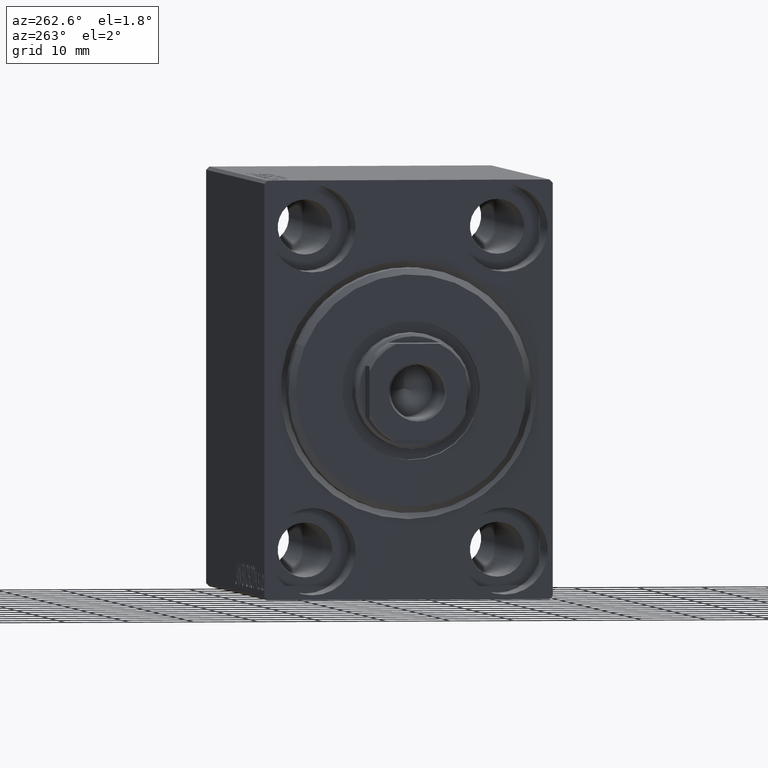
[diagram: clean part render]
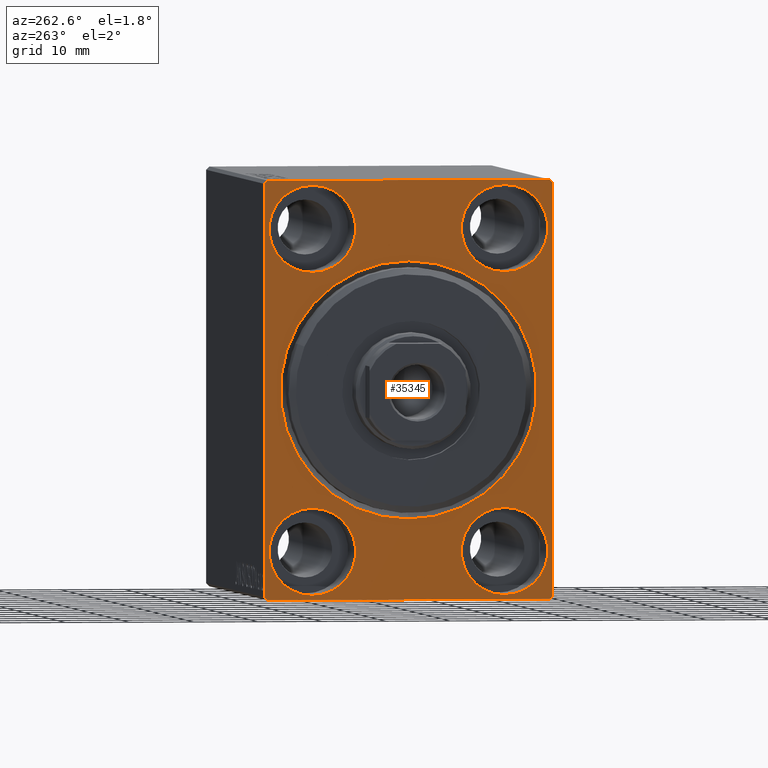
[diagram: same view with one face highlighted and labeled with its STEP entity id]
A machine part, auxiliary view. The second image highlights one B-rep face of the part: STEP entity #35345.
In plain terms, the highlighted planar face has unit normal (1, 0, 0).
Its self-contained STEP definition (entity closure, byte-faithful):
#299 = CARTESIAN_POINT ( 'NONE',  ( 0.000000000000000000, -22.00000000000002132, -32.50000000000000711 ) ) ;
#794 = CIRCLE ( 'NONE', #7212, 6.749999999999999112 ) ;
#819 = VERTEX_POINT ( 'NONE', #1091 ) ;
#854 = DIRECTION ( 'NONE',  ( 0.000000000000000000, -0.7071067811865376918, -0.7071067811865573427 ) ) ;
#1091 = CARTESIAN_POINT ( 'NONE',  ( 0.000000000000000000, -14.99999999999999645, 31.75000000000000000 ) ) ;
#1144 = CIRCLE ( 'NONE', #25322, 20.00000000000000355 ) ;
#1299 = FACE_BOUND ( 'NONE', #13420, .T. ) ;
#1623 = CARTESIAN_POINT ( 'NONE',  ( 0.000000000000000000, -22.00000000000002132, -32.50000000000000711 ) ) ;
#1900 = CARTESIAN_POINT ( 'NONE',  ( 0.000000000000000000, -22.50000000000000711, -32.50000000000000711 ) ) ;
#2019 = CIRCLE ( 'NONE', #20394, 6.749999999999999112 ) ;
#2783 = DIRECTION ( 'NONE',  ( -1.000000000000000000, 0.000000000000000000, 0.000000000000000000 ) ) ;
#2891 = CIRCLE ( 'NONE', #17104, 6.749999999999999112 ) ;
#3281 = CARTESIAN_POINT ( 'NONE',  ( 0.000000000000000000, -14.99999999999999645, 18.25000000000000355 ) ) ;
#3526 = CARTESIAN_POINT ( 'NONE',  ( 0.000000000000000000, 0.000000000000000000, 0.000000000000000000 ) ) ;
#4177 = CARTESIAN_POINT ( 'NONE',  ( 0.000000000000000000, 14.99999999999999645, -25.00000000000000000 ) ) ;
#4279 = EDGE_CURVE ( 'NONE', #16051, #19644, #5340, .T. ) ;
#4423 = FACE_OUTER_BOUND ( 'NONE', #11447, .T. ) ;
#4562 = VECTOR ( 'NONE', #17976, 1000.000000000000114 ) ;
#4938 = CARTESIAN_POINT ( 'NONE',  ( 0.000000000000000000, 22.00000000000001421, -32.50000000000000711 ) ) ;
#5065 = DIRECTION ( 'NONE',  ( -1.000000000000000000, 0.000000000000000000, 0.000000000000000000 ) ) ;
#5085 = CARTESIAN_POINT ( 'NONE',  ( 0.000000000000000000, -15.00000000000000355, -18.25000000000000355 ) ) ;
#5117 = VERTEX_POINT ( 'NONE', #17040 ) ;
#5340 = CIRCLE ( 'NONE', #16702, 20.00000000000000355 ) ;
#5757 = DIRECTION ( 'NONE',  ( 0.000000000000000000, 0.000000000000000000, 1.000000000000000000 ) ) ;
#6331 = DIRECTION ( 'NONE',  ( 0.000000000000000000, 0.000000000000000000, -1.000000000000000000 ) ) ;
#6681 = CARTESIAN_POINT ( 'NONE',  ( 0.000000000000000000, 14.99999999999999645, -18.25000000000000355 ) ) ;
#6744 = ORIENTED_EDGE ( 'NONE', *, *, #37261, .F. ) ;
#7066 = ORIENTED_EDGE ( 'NONE', *, *, #31778, .T. ) ;
#7212 = AXIS2_PLACEMENT_3D ( 'NONE', #13458, #2783, #12597 ) ;
#7428 = DIRECTION ( 'NONE',  ( 0.000000000000000000, 0.000000000000000000, 1.000000000000000000 ) ) ;
#8548 = EDGE_CURVE ( 'NONE', #19644, #16051, #1144, .T. ) ;
#8876 = FACE_BOUND ( 'NONE', #25855, .T. ) ;
#9221 = EDGE_LOOP ( 'NONE', ( #10623, #34512 ) ) ;
#9656 = VERTEX_POINT ( 'NONE', #37683 ) ;
#9935 = DIRECTION ( 'NONE',  ( 0.000000000000000000, -1.067522139062650425E-16, 1.000000000000000000 ) ) ;
#10159 = LINE ( 'NONE', #23940, #31399 ) ;
#10623 = ORIENTED_EDGE ( 'NONE', *, *, #4279, .T. ) ;
#10662 = DIRECTION ( 'NONE',  ( -0.000000000000000000, 0.7071067811865425767, -0.7071067811865525687 ) ) ;
#10772 = CARTESIAN_POINT ( 'NONE',  ( 0.000000000000000000, 0.000000000000000000, 0.000000000000000000 ) ) ;
#10792 = VECTOR ( 'NONE', #10662, 999.9999999999998863 ) ;
#10837 = VERTEX_POINT ( 'NONE', #38959 ) ;
#11341 = VERTEX_POINT ( 'NONE', #3281 ) ;
#11447 = EDGE_LOOP ( 'NONE', ( #38833, #33459, #33535, #21675, #36659, #7066, #20577, #23596 ) ) ;
#11995 = PLANE ( 'NONE',  #25738 ) ;
#12063 = CIRCLE ( 'NONE', #36916, 6.749999999999999112 ) ;
#12597 = DIRECTION ( 'NONE',  ( 0.000000000000000000, 0.000000000000000000, 1.000000000000000000 ) ) ;
#12928 = ORIENTED_EDGE ( 'NONE', *, *, #23487, .F. ) ;
#12999 = ORIENTED_EDGE ( 'NONE', *, *, #15147, .F. ) ;
#13111 = VERTEX_POINT ( 'NONE', #4938 ) ;
#13200 = CARTESIAN_POINT ( 'NONE',  ( 0.000000000000000000, 0.000000000000000000, 20.00000000000000355 ) ) ;
#13420 = EDGE_LOOP ( 'NONE', ( #36730, #12999 ) ) ;
#13458 = CARTESIAN_POINT ( 'NONE',  ( 0.000000000000000000, -15.00000000000000355, -25.00000000000000000 ) ) ;
#13464 = CARTESIAN_POINT ( 'NONE',  ( 0.000000000000000000, 22.49999999999999289, 31.99999999999999289 ) ) ;
#14126 = DIRECTION ( 'NONE',  ( 1.000000000000000000, 0.000000000000000000, 0.000000000000000000 ) ) ;
#14390 = AXIS2_PLACEMENT_3D ( 'NONE', #29540, #29316, #43325 ) ;
#15147 = EDGE_CURVE ( 'NONE', #11341, #819, #2019, .T. ) ;
#15476 = VERTEX_POINT ( 'NONE', #21767 ) ;
#15496 = DIRECTION ( 'NONE',  ( 0.000000000000000000, 1.000000000000000000, 0.000000000000000000 ) ) ;
#15934 = ORIENTED_EDGE ( 'NONE', *, *, #28151, .F. ) ;
#15976 = CARTESIAN_POINT ( 'NONE',  ( 0.000000000000000000, 22.50000000000000000, -32.50000000000000711 ) ) ;
#16051 = VERTEX_POINT ( 'NONE', #13200 ) ;
#16533 = VECTOR ( 'NONE', #854, 1000.000000000000114 ) ;
#16573 = ORIENTED_EDGE ( 'NONE', *, *, #25782, .F. ) ;
#16702 = AXIS2_PLACEMENT_3D ( 'NONE', #10772, #14126, #24340 ) ;
#17040 = CARTESIAN_POINT ( 'NONE',  ( 0.000000000000000000, 15.00000000000000355, 18.25000000000000355 ) ) ;
#17104 = AXIS2_PLACEMENT_3D ( 'NONE', #4177, #17537, #31309 ) ;
#17120 = DIRECTION ( 'NONE',  ( 1.000000000000000000, 0.000000000000000000, 0.000000000000000000 ) ) ;
#17283 = DIRECTION ( 'NONE',  ( -1.000000000000000000, 0.000000000000000000, 0.000000000000000000 ) ) ;
#17372 = CARTESIAN_POINT ( 'NONE',  ( 0.000000000000000000, 2.449293598294706907E-15, -20.00000000000000355 ) ) ;
#17537 = DIRECTION ( 'NONE',  ( -1.000000000000000000, 0.000000000000000000, 0.000000000000000000 ) ) ;
#17976 = DIRECTION ( 'NONE',  ( -0.000000000000000000, 0.7071067811865474617, 0.7071067811865474617 ) ) ;
#18521 = VECTOR ( 'NONE', #9935, 1000.000000000000000 ) ;
#18639 = DIRECTION ( 'NONE',  ( 0.000000000000000000, 0.000000000000000000, 1.000000000000000000 ) ) ;
#18747 = ORIENTED_EDGE ( 'NONE', *, *, #36581, .F. ) ;
#19316 = CARTESIAN_POINT ( 'NONE',  ( 0.000000000000000000, -14.99999999999999645, 25.00000000000000000 ) ) ;
#19644 = VERTEX_POINT ( 'NONE', #17372 ) ;
#20315 = CARTESIAN_POINT ( 'NONE',  ( 0.000000000000000000, -22.50000000000000711, 32.49999999999999289 ) ) ;
#20394 = AXIS2_PLACEMENT_3D ( 'NONE', #28323, #31661, #7428 ) ;
#20478 = EDGE_LOOP ( 'NONE', ( #15934, #16573 ) ) ;
#20577 = ORIENTED_EDGE ( 'NONE', *, *, #42931, .F. ) ;
#20889 = CARTESIAN_POINT ( 'NONE',  ( 0.000000000000000000, 21.99999999999999289, 32.50000000000000000 ) ) ;
#21103 = LINE ( 'NONE', #42226, #16533 ) ;
#21675 = ORIENTED_EDGE ( 'NONE', *, *, #35201, .T. ) ;
#21767 = CARTESIAN_POINT ( 'NONE',  ( 0.000000000000000000, 15.00000000000000355, 31.75000000000000000 ) ) ;
#21773 = FACE_BOUND ( 'NONE', #9221, .T. ) ;
#21852 = VERTEX_POINT ( 'NONE', #6681 ) ;
#22216 = DIRECTION ( 'NONE',  ( 0.000000000000000000, 0.000000000000000000, -1.000000000000000000 ) ) ;
#23487 = EDGE_CURVE ( 'NONE', #15476, #5117, #12063, .T. ) ;
#23596 = ORIENTED_EDGE ( 'NONE', *, *, #28253, .T. ) ;
#23765 = VERTEX_POINT ( 'NONE', #36049 ) ;
#23940 = CARTESIAN_POINT ( 'NONE',  ( 0.000000000000000000, 22.49999999999999289, 32.50000000000000000 ) ) ;
#24252 = VECTOR ( 'NONE', #27449, 1000.000000000000000 ) ;
#24340 = DIRECTION ( 'NONE',  ( 0.000000000000000000, 0.000000000000000000, -1.000000000000000000 ) ) ;
#24522 = EDGE_CURVE ( 'NONE', #42387, #9656, #43892, .T. ) ;
#24654 = LINE ( 'NONE', #20889, #10792 ) ;
#25322 = AXIS2_PLACEMENT_3D ( 'NONE', #3526, #17120, #30663 ) ;
#25655 = EDGE_CURVE ( 'NONE', #21852, #28342, #2891, .T. ) ;
#25738 = AXIS2_PLACEMENT_3D ( 'NONE', #28439, #35338, #22216 ) ;
#25782 = EDGE_CURVE ( 'NONE', #35696, #31898, #39096, .T. ) ;
#25855 = EDGE_LOOP ( 'NONE', ( #12928, #6744 ) ) ;
#25907 = EDGE_CURVE ( 'NONE', #33065, #34597, #36862, .T. ) ;
#26421 = DIRECTION ( 'NONE',  ( 0.000000000000000000, -1.000000000000000000, -1.541976423090495387E-16 ) ) ;
#27180 = CIRCLE ( 'NONE', #34294, 6.749999999999999112 ) ;
#27449 = DIRECTION ( 'NONE',  ( -0.000000000000000000, -0.7071067811865378028, 0.7071067811865573427 ) ) ;
#28149 = LINE ( 'NONE', #1900, #40833 ) ;
#28151 = EDGE_CURVE ( 'NONE', #31898, #35696, #794, .T. ) ;
#28253 = EDGE_CURVE ( 'NONE', #31628, #9656, #34780, .T. ) ;
#28323 = CARTESIAN_POINT ( 'NONE',  ( 0.000000000000000000, -14.99999999999999645, 25.00000000000000000 ) ) ;
#28342 = VERTEX_POINT ( 'NONE', #29214 ) ;
#28439 = CARTESIAN_POINT ( 'NONE',  ( 0.000000000000000000, 0.000000000000000000, 0.000000000000000000 ) ) ;
#28450 = AXIS2_PLACEMENT_3D ( 'NONE', #39087, #5065, #18639 ) ;
#29020 = DIRECTION ( 'NONE',  ( -1.000000000000000000, 0.000000000000000000, 0.000000000000000000 ) ) ;
#29214 = CARTESIAN_POINT ( 'NONE',  ( 0.000000000000000000, 14.99999999999999645, -31.75000000000000000 ) ) ;
#29243 = DIRECTION ( 'NONE',  ( 0.000000000000000000, 0.000000000000000000, 1.000000000000000000 ) ) ;
#29316 = DIRECTION ( 'NONE',  ( -1.000000000000000000, 0.000000000000000000, 0.000000000000000000 ) ) ;
#29540 = CARTESIAN_POINT ( 'NONE',  ( 0.000000000000000000, 14.99999999999999645, -25.00000000000000000 ) ) ;
#30188 = CARTESIAN_POINT ( 'NONE',  ( 0.000000000000000000, 15.00000000000000355, 25.00000000000000000 ) ) ;
#30663 = DIRECTION ( 'NONE',  ( 0.000000000000000000, 0.000000000000000000, -1.000000000000000000 ) ) ;
#30837 = DIRECTION ( 'NONE',  ( 0.000000000000000000, 0.000000000000000000, 1.000000000000000000 ) ) ;
#31279 = EDGE_CURVE ( 'NONE', #10837, #23765, #10159, .T. ) ;
#31309 = DIRECTION ( 'NONE',  ( 0.000000000000000000, 0.000000000000000000, 1.000000000000000000 ) ) ;
#31399 = VECTOR ( 'NONE', #26421, 1000.000000000000000 ) ;
#31628 = VERTEX_POINT ( 'NONE', #1623 ) ;
#31661 = DIRECTION ( 'NONE',  ( -1.000000000000000000, 0.000000000000000000, 0.000000000000000000 ) ) ;
#31778 = EDGE_CURVE ( 'NONE', #33065, #13111, #21103, .T. ) ;
#31780 = FACE_BOUND ( 'NONE', #37202, .T. ) ;
#31898 = VERTEX_POINT ( 'NONE', #5085 ) ;
#31988 = CARTESIAN_POINT ( 'NONE',  ( 0.000000000000000000, -22.50000000000000711, 31.99999999999999289 ) ) ;
#32178 = CIRCLE ( 'NONE', #14390, 6.749999999999999112 ) ;
#33065 = VERTEX_POINT ( 'NONE', #35654 ) ;
#33459 = ORIENTED_EDGE ( 'NONE', *, *, #42469, .T. ) ;
#33535 = ORIENTED_EDGE ( 'NONE', *, *, #31279, .F. ) ;
#34294 = AXIS2_PLACEMENT_3D ( 'NONE', #30188, #43333, #5757 ) ;
#34512 = ORIENTED_EDGE ( 'NONE', *, *, #8548, .T. ) ;
#34597 = VERTEX_POINT ( 'NONE', #13464 ) ;
#34780 = LINE ( 'NONE', #299, #24252 ) ;
#34881 = CARTESIAN_POINT ( 'NONE',  ( 0.000000000000000000, -22.50000000000000711, 31.99999999999999289 ) ) ;
#35201 = EDGE_CURVE ( 'NONE', #10837, #34597, #24654, .T. ) ;
#35338 = DIRECTION ( 'NONE',  ( 1.000000000000000000, 0.000000000000000000, 0.000000000000000000 ) ) ;
#35345 = ADVANCED_FACE ( 'NONE', ( #21773, #31780, #1299, #8876, #42234, #4423 ), #11995, .F. ) ;
#35654 = CARTESIAN_POINT ( 'NONE',  ( 0.000000000000000000, 22.50000000000000000, -32.00000000000002132 ) ) ;
#35696 = VERTEX_POINT ( 'NONE', #41323 ) ;
#35930 = CARTESIAN_POINT ( 'NONE',  ( 0.000000000000000000, 15.00000000000000355, 25.00000000000000000 ) ) ;
#36049 = CARTESIAN_POINT ( 'NONE',  ( 0.000000000000000000, -21.99999999999999289, 32.49999999999999289 ) ) ;
#36568 = CIRCLE ( 'NONE', #42232, 6.749999999999999112 ) ;
#36581 = EDGE_CURVE ( 'NONE', #28342, #21852, #32178, .T. ) ;
#36659 = ORIENTED_EDGE ( 'NONE', *, *, #25907, .F. ) ;
#36730 = ORIENTED_EDGE ( 'NONE', *, *, #42643, .F. ) ;
#36862 = LINE ( 'NONE', #15976, #18521 ) ;
#36916 = AXIS2_PLACEMENT_3D ( 'NONE', #35930, #29020, #29243 ) ;
#37202 = EDGE_LOOP ( 'NONE', ( #38406, #18747 ) ) ;
#37261 = EDGE_CURVE ( 'NONE', #5117, #15476, #27180, .T. ) ;
#37683 = CARTESIAN_POINT ( 'NONE',  ( 0.000000000000000000, -22.50000000000000711, -32.00000000000000711 ) ) ;
#38357 = VECTOR ( 'NONE', #6331, 1000.000000000000000 ) ;
#38406 = ORIENTED_EDGE ( 'NONE', *, *, #25655, .F. ) ;
#38833 = ORIENTED_EDGE ( 'NONE', *, *, #24522, .F. ) ;
#38959 = CARTESIAN_POINT ( 'NONE',  ( 0.000000000000000000, 21.99999999999999289, 32.50000000000000000 ) ) ;
#39087 = CARTESIAN_POINT ( 'NONE',  ( 0.000000000000000000, -15.00000000000000355, -25.00000000000000000 ) ) ;
#39096 = CIRCLE ( 'NONE', #28450, 6.749999999999999112 ) ;
#40833 = VECTOR ( 'NONE', #15496, 1000.000000000000000 ) ;
#41323 = CARTESIAN_POINT ( 'NONE',  ( 0.000000000000000000, -15.00000000000000355, -31.75000000000000000 ) ) ;
#41994 = LINE ( 'NONE', #34881, #4562 ) ;
#42226 = CARTESIAN_POINT ( 'NONE',  ( 0.000000000000000000, 22.50000000000000000, -32.00000000000002132 ) ) ;
#42232 = AXIS2_PLACEMENT_3D ( 'NONE', #19316, #17283, #30837 ) ;
#42234 = FACE_BOUND ( 'NONE', #20478, .T. ) ;
#42387 = VERTEX_POINT ( 'NONE', #31988 ) ;
#42469 = EDGE_CURVE ( 'NONE', #42387, #23765, #41994, .T. ) ;
#42643 = EDGE_CURVE ( 'NONE', #819, #11341, #36568, .T. ) ;
#42931 = EDGE_CURVE ( 'NONE', #31628, #13111, #28149, .T. ) ;
#43325 = DIRECTION ( 'NONE',  ( 0.000000000000000000, 0.000000000000000000, 1.000000000000000000 ) ) ;
#43333 = DIRECTION ( 'NONE',  ( -1.000000000000000000, 0.000000000000000000, 0.000000000000000000 ) ) ;
#43892 = LINE ( 'NONE', #20315, #38357 ) ;